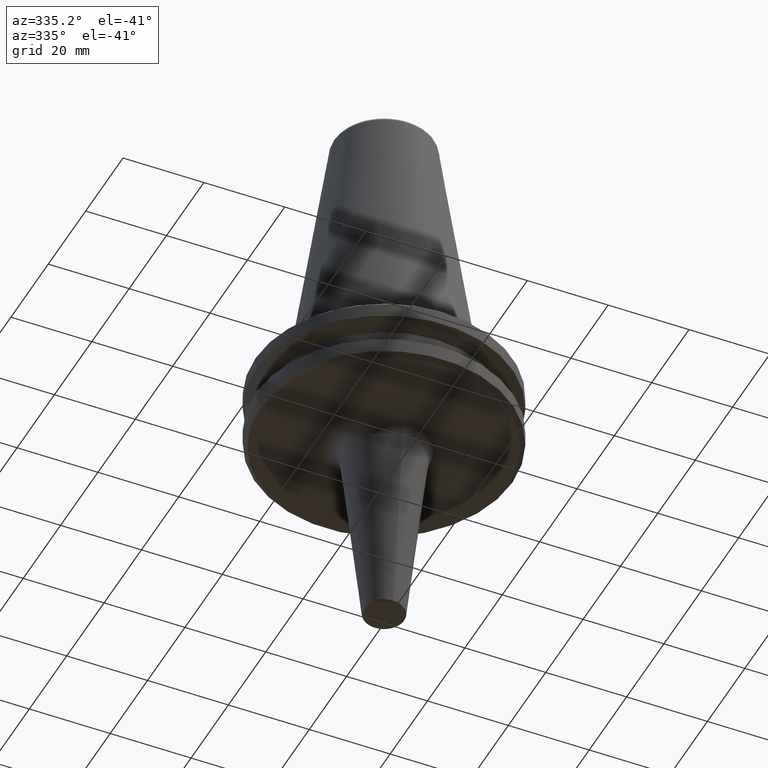
[diagram: clean part render]
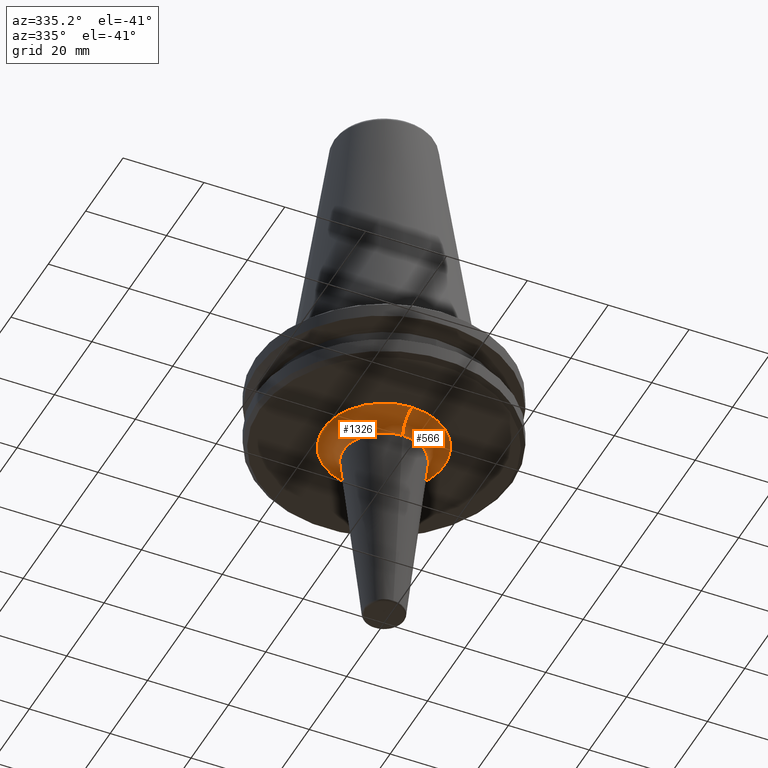
[diagram: same view with one multi-face feature highlighted, each face labeled with its STEP entity id]
A machine part, auxiliary view. The highlighted faces form ONE feature: a constant-radius fillet chain: 2 tangent blend faces with common blend radius 5.0214 mm. The faces share edges in the B-rep.
Their STEP definitions:
[1] entity #1326 (Torus):
#14 = ORIENTED_EDGE ( 'NONE', *, *, #630, .F. ) ;
#97 = FACE_OUTER_BOUND ( 'NONE', #536, .T. ) ;
#210 = VERTEX_POINT ( 'NONE', #772 ) ;
#259 = VERTEX_POINT ( 'NONE', #806 ) ;
#299 = EDGE_CURVE ( 'NONE', #259, #509, #507, .T. ) ;
#497 = CIRCLE ( 'NONE', #1306, 5.021364632469320600 ) ;
#507 = CIRCLE ( 'NONE', #1278, 14.99088800591990500 ) ;
#509 = VERTEX_POINT ( 'NONE', #609 ) ;
#524 = AXIS2_PLACEMENT_3D ( 'NONE', #828, #829, #831 ) ;
#536 = EDGE_LOOP ( 'NONE', ( #1006, #1131, #895, #14 ) ) ;
#562 = DIRECTION ( 'NONE',  ( 0.0000000000000000000, 0.0000000000000000000, 1.000000000000000000 ) ) ;
#588 = DIRECTION ( 'NONE',  ( -1.000000000000000000, 0.0000000000000000000, -0.0000000000000000000 ) ) ;
#607 = CARTESIAN_POINT ( 'NONE',  ( 0.0000000000000000000, -14.99088800591991200, -24.12136463246938700 ) ) ;
#609 = CARTESIAN_POINT ( 'NONE',  ( 0.0000000000000000000, -14.99088800591991200, -19.10000000000006900 ) ) ;
#612 = CIRCLE ( 'NONE', #1004, 10.00000000000000700 ) ;
#630 = EDGE_CURVE ( 'NONE', #509, #210, #497, .T. ) ;
#725 = DIRECTION ( 'NONE',  ( 0.0000000000000000000, -1.000000000000000000, 0.0000000000000000000 ) ) ;
#727 = DIRECTION ( 'NONE',  ( 0.0000000000000000000, -1.000000000000000000, -1.387778780782526200E-016 ) ) ;
#751 = DIRECTION ( 'NONE',  ( -0.0000000000000000000, -1.387778780782526200E-016, 1.000000000000000000 ) ) ;
#754 = CARTESIAN_POINT ( 'NONE',  ( 1.224646799147354200E-015, 10.00000000000000000, -23.56897013161091800 ) ) ;
#757 = CIRCLE ( 'NONE', #524, 5.021364632469320600 ) ;
#769 = CARTESIAN_POINT ( 'NONE',  ( 0.0000000000000000000, -6.938893903907228400E-015, -24.12136463246938300 ) ) ;
#772 = CARTESIAN_POINT ( 'NONE',  ( 0.0000000000000000000, -10.00000000000001400, -23.56897013161091800 ) ) ;
#773 = AXIS2_PLACEMENT_3D ( 'NONE', #769, #852, #727 ) ;
#775 = CARTESIAN_POINT ( 'NONE',  ( 0.0000000000000000000, -6.318699711847184000E-015, -23.56897013161091800 ) ) ;
#806 = CARTESIAN_POINT ( 'NONE',  ( 1.835854301282626000E-015, 14.99088800591989700, -19.10000000000006200 ) ) ;
#828 = CARTESIAN_POINT ( 'NONE',  ( 1.835854301282626000E-015, 14.99088800591989700, -24.12136463246938000 ) ) ;
#829 = DIRECTION ( 'NONE',  ( 1.000000000000000000, -1.224646799147353200E-016, -1.699538841809936900E-032 ) ) ;
#831 = DIRECTION ( 'NONE',  ( 1.224646799147353200E-016, 1.000000000000000000, 0.0000000000000000000 ) ) ;
#852 = DIRECTION ( 'NONE',  ( -0.0000000000000000000, -1.387778780782526200E-016, 1.000000000000000000 ) ) ;
#895 = ORIENTED_EDGE ( 'NONE', *, *, #1315, .T. ) ;
#1004 = AXIS2_PLACEMENT_3D ( 'NONE', #775, #751, #725 ) ;
#1006 = ORIENTED_EDGE ( 'NONE', *, *, #299, .F. ) ;
#1130 = DIRECTION ( 'NONE',  ( 0.0000000000000000000, -1.000000000000000000, -2.314370536677699900E-016 ) ) ;
#1131 = ORIENTED_EDGE ( 'NONE', *, *, #1252, .T. ) ;
#1137 = DIRECTION ( 'NONE',  ( -0.0000000000000000000, -1.387778780782526200E-016, 1.000000000000000000 ) ) ;
#1139 = CARTESIAN_POINT ( 'NONE',  ( 0.0000000000000000000, -6.938893903907228400E-015, -19.10000000000006500 ) ) ;
#1222 = TOROIDAL_SURFACE ( 'NONE', #773, 14.99088800591990500, 5.021364632469320600 ) ;
#1252 = EDGE_CURVE ( 'NONE', #259, #1302, #757, .T. ) ;
#1278 = AXIS2_PLACEMENT_3D ( 'NONE', #1139, #1137, #1130 ) ;
#1302 = VERTEX_POINT ( 'NONE', #754 ) ;
#1306 = AXIS2_PLACEMENT_3D ( 'NONE', #607, #588, #562 ) ;
#1315 = EDGE_CURVE ( 'NONE', #1302, #210, #612, .T. ) ;
#1326 = ADVANCED_FACE ( 'NONE', ( #97 ), #1222, .F. ) ;
[2] entity #566 (Torus):
#158 = CIRCLE ( 'NONE', #897, 10.00000000000000700 ) ;
#210 = VERTEX_POINT ( 'NONE', #772 ) ;
#259 = VERTEX_POINT ( 'NONE', #806 ) ;
#270 = EDGE_CURVE ( 'NONE', #509, #259, #1282, .T. ) ;
#286 = ORIENTED_EDGE ( 'NONE', *, *, #270, .F. ) ;
#354 = ORIENTED_EDGE ( 'NONE', *, *, #630, .T. ) ;
#380 = TOROIDAL_SURFACE ( 'NONE', #1069, 14.99088800591990500, 5.021364632469320600 ) ;
#497 = CIRCLE ( 'NONE', #1306, 5.021364632469320600 ) ;
#509 = VERTEX_POINT ( 'NONE', #609 ) ;
#524 = AXIS2_PLACEMENT_3D ( 'NONE', #828, #829, #831 ) ;
#555 = DIRECTION ( 'NONE',  ( 0.0000000000000000000, -1.000000000000000000, -1.387778780782526200E-016 ) ) ;
#562 = DIRECTION ( 'NONE',  ( 0.0000000000000000000, 0.0000000000000000000, 1.000000000000000000 ) ) ;
#566 = ADVANCED_FACE ( 'NONE', ( #1294 ), #380, .F. ) ;
#588 = DIRECTION ( 'NONE',  ( -1.000000000000000000, 0.0000000000000000000, -0.0000000000000000000 ) ) ;
#607 = CARTESIAN_POINT ( 'NONE',  ( 0.0000000000000000000, -14.99088800591991200, -24.12136463246938700 ) ) ;
#608 = CARTESIAN_POINT ( 'NONE',  ( 0.0000000000000000000, -6.938893903907228400E-015, -24.12136463246938300 ) ) ;
#609 = CARTESIAN_POINT ( 'NONE',  ( 0.0000000000000000000, -14.99088800591991200, -19.10000000000006900 ) ) ;
#630 = EDGE_CURVE ( 'NONE', #509, #210, #497, .T. ) ;
#669 = DIRECTION ( 'NONE',  ( -0.0000000000000000000, -1.387778780782526200E-016, 1.000000000000000000 ) ) ;
#748 = DIRECTION ( 'NONE',  ( -0.0000000000000000000, -1.387778780782526200E-016, 1.000000000000000000 ) ) ;
#754 = CARTESIAN_POINT ( 'NONE',  ( 1.224646799147354200E-015, 10.00000000000000000, -23.56897013161091800 ) ) ;
#757 = CIRCLE ( 'NONE', #524, 5.021364632469320600 ) ;
#771 = DIRECTION ( 'NONE',  ( 0.0000000000000000000, -1.000000000000000000, 0.0000000000000000000 ) ) ;
#772 = CARTESIAN_POINT ( 'NONE',  ( 0.0000000000000000000, -10.00000000000001400, -23.56897013161091800 ) ) ;
#806 = CARTESIAN_POINT ( 'NONE',  ( 1.835854301282626000E-015, 14.99088800591989700, -19.10000000000006200 ) ) ;
#828 = CARTESIAN_POINT ( 'NONE',  ( 1.835854301282626000E-015, 14.99088800591989700, -24.12136463246938000 ) ) ;
#829 = DIRECTION ( 'NONE',  ( 1.000000000000000000, -1.224646799147353200E-016, -1.699538841809936900E-032 ) ) ;
#831 = DIRECTION ( 'NONE',  ( 1.224646799147353200E-016, 1.000000000000000000, 0.0000000000000000000 ) ) ;
#893 = ORIENTED_EDGE ( 'NONE', *, *, #1252, .F. ) ;
#897 = AXIS2_PLACEMENT_3D ( 'NONE', #1030, #748, #771 ) ;
#908 = EDGE_CURVE ( 'NONE', #210, #1302, #158, .T. ) ;
#988 = EDGE_LOOP ( 'NONE', ( #893, #286, #354, #1366 ) ) ;
#1030 = CARTESIAN_POINT ( 'NONE',  ( 0.0000000000000000000, -6.318699711847184000E-015, -23.56897013161091800 ) ) ;
#1042 = CARTESIAN_POINT ( 'NONE',  ( 0.0000000000000000000, -6.938893903907228400E-015, -19.10000000000006500 ) ) ;
#1047 = DIRECTION ( 'NONE',  ( -0.0000000000000000000, -1.387778780782526200E-016, 1.000000000000000000 ) ) ;
#1069 = AXIS2_PLACEMENT_3D ( 'NONE', #608, #669, #555 ) ;
#1123 = DIRECTION ( 'NONE',  ( 0.0000000000000000000, -1.000000000000000000, -2.314370536677699900E-016 ) ) ;
#1252 = EDGE_CURVE ( 'NONE', #259, #1302, #757, .T. ) ;
#1274 = AXIS2_PLACEMENT_3D ( 'NONE', #1042, #1047, #1123 ) ;
#1282 = CIRCLE ( 'NONE', #1274, 14.99088800591990500 ) ;
#1294 = FACE_OUTER_BOUND ( 'NONE', #988, .T. ) ;
#1302 = VERTEX_POINT ( 'NONE', #754 ) ;
#1306 = AXIS2_PLACEMENT_3D ( 'NONE', #607, #588, #562 ) ;
#1366 = ORIENTED_EDGE ( 'NONE', *, *, #908, .T. ) ;